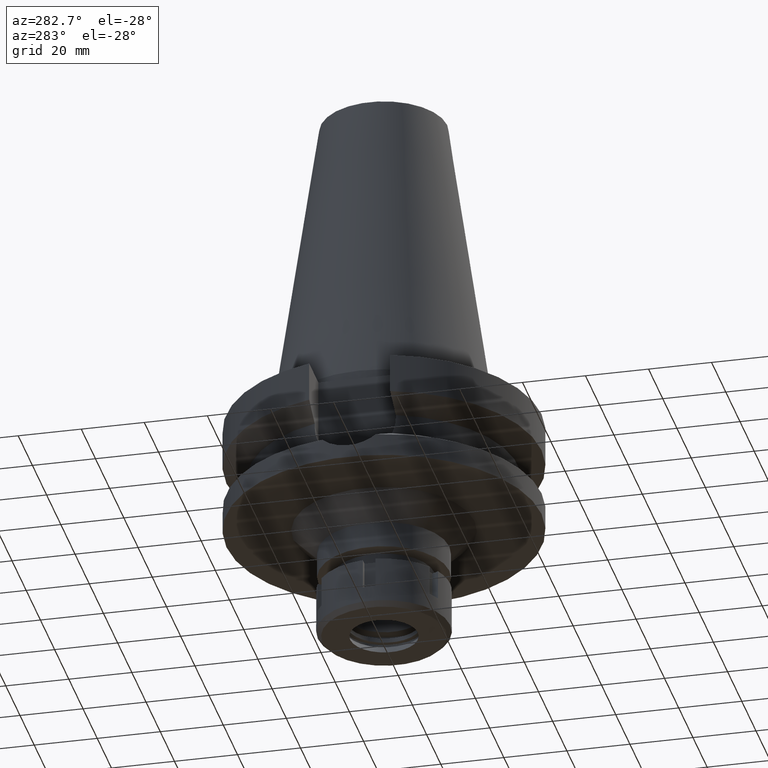
[diagram: clean part render]
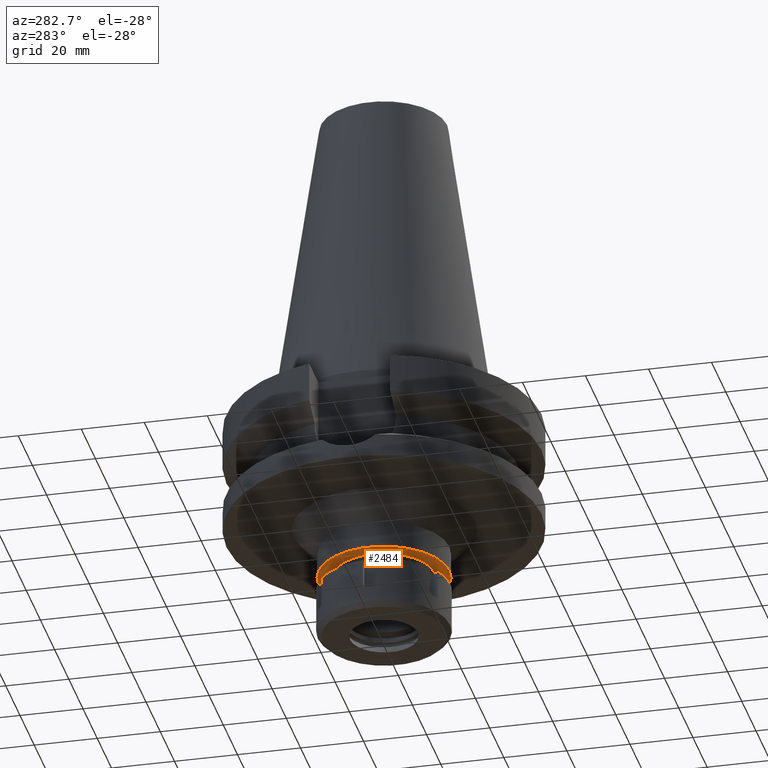
[diagram: same view with one face highlighted and labeled with its STEP entity id]
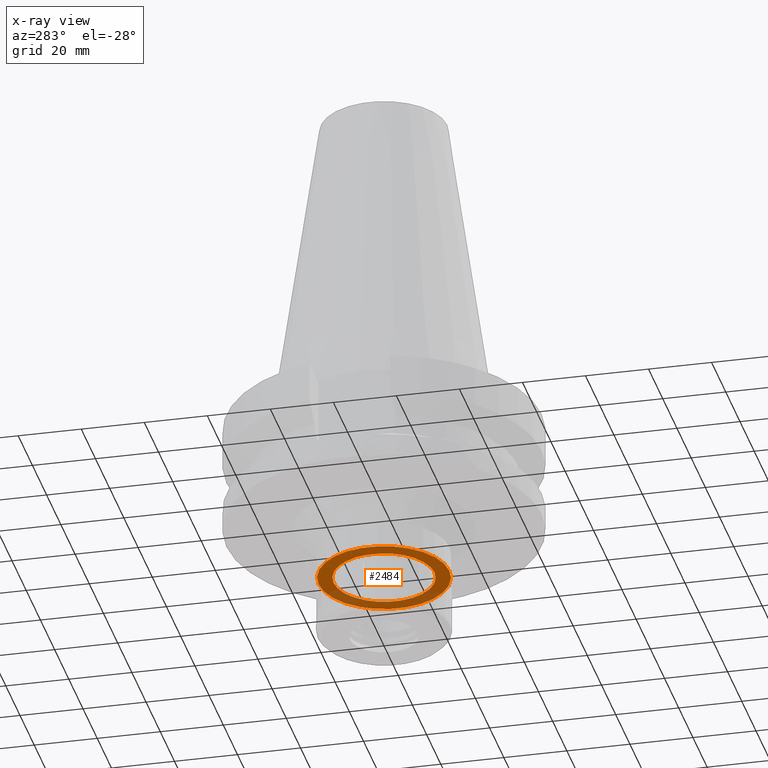
[diagram: x-ray of the same camera — body ghosted, the highlighted face saturated]
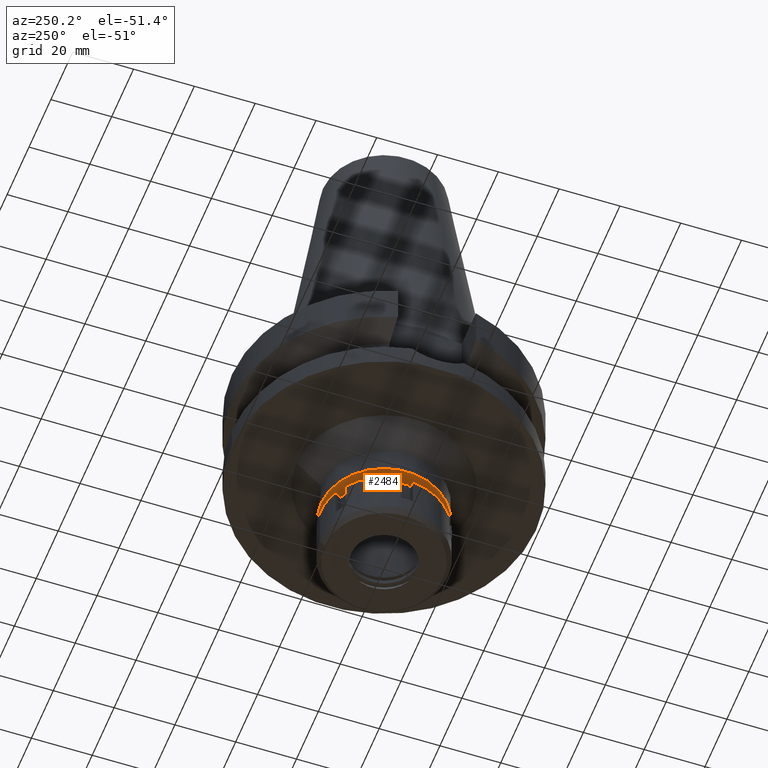
[diagram: same view with one face highlighted and labeled with its STEP entity id]
A machine part, auxiliary view. The second image highlights one B-rep face of the part: STEP entity #2484.
The next image is the same camera in x-ray: the body ghosted, the highlighted face saturated — about 33% of this face is hidden behind the body in this view.
A second angle (auxiliary view) of the same face is appended — the face is thin or edge-on in the first view.
In plain terms, the highlighted planar face has unit normal (0, 0, -1).
Its self-contained STEP definition (entity closure, byte-faithful):
#22 = AXIS2_PLACEMENT_3D ( 'NONE', #497, #531, #2786 ) ;
#398 = CIRCLE ( 'NONE', #1797, 16.00000000000000000 ) ;
#414 = EDGE_LOOP ( 'NONE', ( #2852, #3215 ) ) ;
#470 = DIRECTION ( 'NONE',  ( 0.0000000000000000000, 1.000000000000000000, 0.0000000000000000000 ) ) ;
#497 = CARTESIAN_POINT ( 'NONE',  ( 0.0000000000000000000, 2.574697430526999748E-14, -54.50000000000000000 ) ) ;
#503 = CARTESIAN_POINT ( 'NONE',  ( 0.0000000000000000000, 2.574697430526999748E-14, -54.50000000000000000 ) ) ;
#531 = DIRECTION ( 'NONE',  ( 0.0000000000000000000, 0.0000000000000000000, 1.000000000000000000 ) ) ;
#567 = FACE_OUTER_BOUND ( 'NONE', #414, .T. ) ;
#645 = CARTESIAN_POINT ( 'NONE',  ( 0.0000000000000000000, 20.75000000000000000, -54.50000000000000000 ) ) ;
#678 = AXIS2_PLACEMENT_3D ( 'NONE', #1640, #1961, #2737 ) ;
#735 = ORIENTED_EDGE ( 'NONE', *, *, #3320, .F. ) ;
#789 = CARTESIAN_POINT ( 'NONE',  ( 0.0000000000000000000, 16.00000000000000000, -54.50000000000000000 ) ) ;
#1002 = CARTESIAN_POINT ( 'NONE',  ( 0.0000000000000000000, -20.75000000000000000, -54.50000000000000000 ) ) ;
#1091 = AXIS2_PLACEMENT_3D ( 'NONE', #2042, #1467, #2315 ) ;
#1283 = DIRECTION ( 'NONE',  ( 0.0000000000000000000, 0.0000000000000000000, -1.000000000000000000 ) ) ;
#1467 = DIRECTION ( 'NONE',  ( 0.0000000000000000000, 0.0000000000000000000, -1.000000000000000000 ) ) ;
#1585 = CARTESIAN_POINT ( 'NONE',  ( 0.0000000000000000000, -16.00000000000000000, -54.50000000000000000 ) ) ;
#1640 = CARTESIAN_POINT ( 'NONE',  ( 0.0000000000000000000, 0.0000000000000000000, -54.50000000000000000 ) ) ;
#1730 = VERTEX_POINT ( 'NONE', #1585 ) ;
#1791 = CIRCLE ( 'NONE', #22, 20.75000000000000000 ) ;
#1797 = AXIS2_PLACEMENT_3D ( 'NONE', #503, #1283, #470 ) ;
#1853 = CIRCLE ( 'NONE', #1091, 16.00000000000000000 ) ;
#1961 = DIRECTION ( 'NONE',  ( 0.0000000000000000000, 0.0000000000000000000, -1.000000000000000000 ) ) ;
#2010 = VERTEX_POINT ( 'NONE', #1002 ) ;
#2042 = CARTESIAN_POINT ( 'NONE',  ( 0.0000000000000000000, 2.574697430526999748E-14, -54.50000000000000000 ) ) ;
#2132 = EDGE_CURVE ( 'NONE', #2324, #2010, #2659, .T. ) ;
#2164 = VERTEX_POINT ( 'NONE', #789 ) ;
#2187 = PLANE ( 'NONE',  #678 ) ;
#2191 = CARTESIAN_POINT ( 'NONE',  ( 0.0000000000000000000, 2.574697430526999748E-14, -54.50000000000000000 ) ) ;
#2288 = EDGE_LOOP ( 'NONE', ( #735, #2779 ) ) ;
#2315 = DIRECTION ( 'NONE',  ( 0.0000000000000000000, -1.000000000000000000, 0.0000000000000000000 ) ) ;
#2324 = VERTEX_POINT ( 'NONE', #645 ) ;
#2339 = EDGE_CURVE ( 'NONE', #1730, #2164, #1853, .T. ) ;
#2484 = ADVANCED_FACE ( 'NONE', ( #567, #3609 ), #2187, .T. ) ;
#2487 = EDGE_CURVE ( 'NONE', #2010, #2324, #1791, .T. ) ;
#2497 = DIRECTION ( 'NONE',  ( 0.0000000000000000000, 1.000000000000000000, 0.0000000000000000000 ) ) ;
#2546 = AXIS2_PLACEMENT_3D ( 'NONE', #2191, #3280, #2497 ) ;
#2659 = CIRCLE ( 'NONE', #2546, 20.75000000000000000 ) ;
#2737 = DIRECTION ( 'NONE',  ( 0.0000000000000000000, -1.000000000000000000, 0.0000000000000000000 ) ) ;
#2779 = ORIENTED_EDGE ( 'NONE', *, *, #2339, .F. ) ;
#2786 = DIRECTION ( 'NONE',  ( 0.0000000000000000000, -1.000000000000000000, 0.0000000000000000000 ) ) ;
#2852 = ORIENTED_EDGE ( 'NONE', *, *, #2132, .F. ) ;
#3215 = ORIENTED_EDGE ( 'NONE', *, *, #2487, .F. ) ;
#3280 = DIRECTION ( 'NONE',  ( 0.0000000000000000000, 0.0000000000000000000, 1.000000000000000000 ) ) ;
#3320 = EDGE_CURVE ( 'NONE', #2164, #1730, #398, .T. ) ;
#3609 = FACE_BOUND ( 'NONE', #2288, .T. ) ;